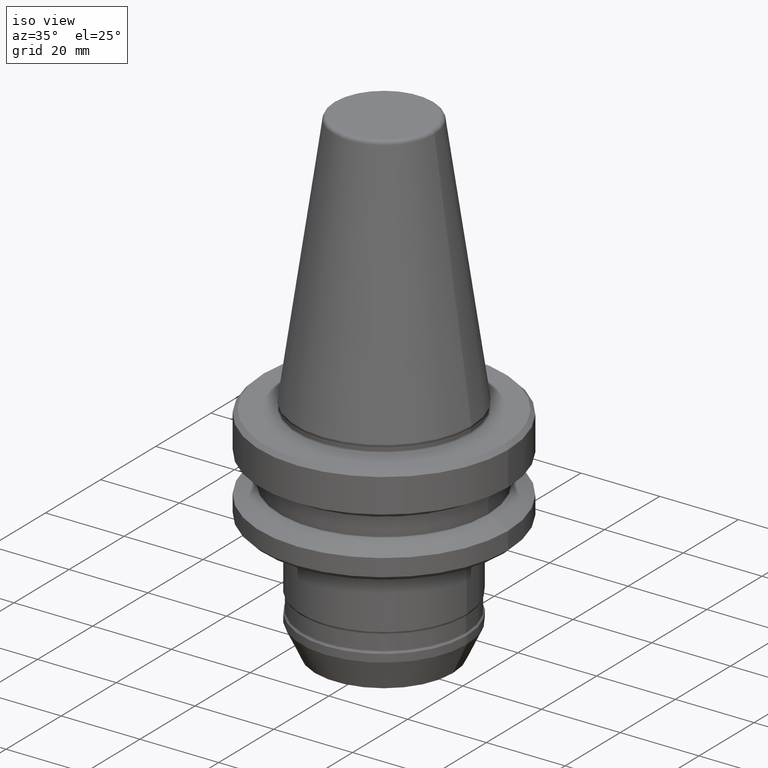
[diagram: clean part render]
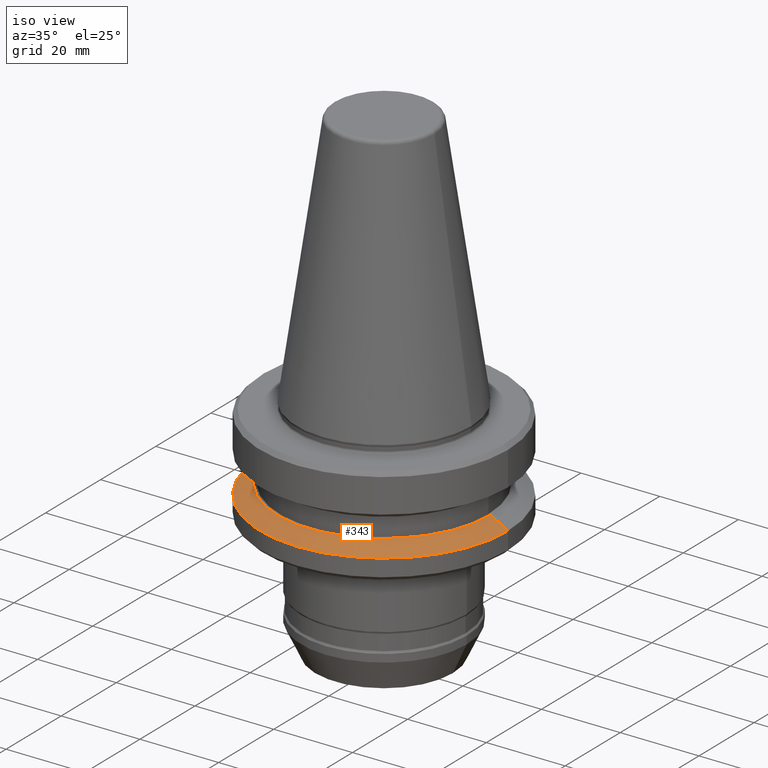
[diagram: same view with one face highlighted and labeled with its STEP entity id]
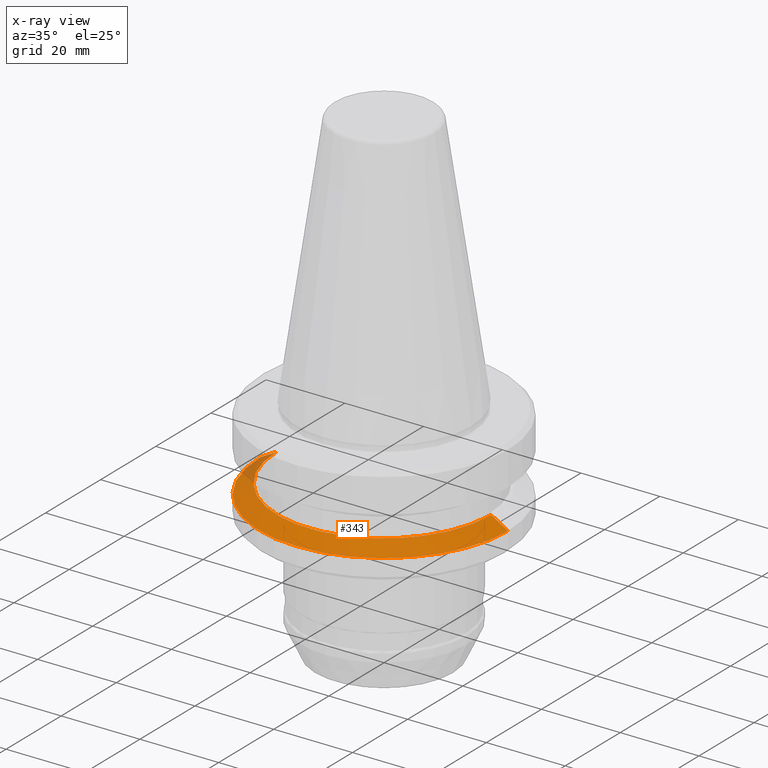
[diagram: x-ray of the same camera — body ghosted, the highlighted face saturated]
A machine part, iso view. The second image highlights one B-rep face of the part: STEP entity #343.
The next image is the same camera in x-ray: the body ghosted, the highlighted face saturated — about 4% of this face is hidden behind the body in this view.
In plain terms, the highlighted conical surface has half-angle 60 deg.
Its self-contained STEP definition (entity closure, byte-faithful):
#36 = DIRECTION ( 'NONE',  ( 0.8660254037844389300, 1.060575238724907300E-016, -0.4999999999999995000 ) ) ;
#72 = DIRECTION ( 'NONE',  ( -0.8660254037844389300, 0.0000000000000000000, -0.4999999999999995000 ) ) ;
#104 = VECTOR ( 'NONE', #36, 1000.000000000000000 ) ;
#118 = LINE ( 'NONE', #855, #104 ) ;
#124 = CIRCLE ( 'NONE', #806, 27.16962701894138000 ) ;
#207 = EDGE_CURVE ( 'NONE', #834, #754, #494, .T. ) ;
#332 = CONICAL_SURFACE ( 'NONE', #816, 31.50000000002021800, 1.047197551196598300 ) ;
#343 = ADVANCED_FACE ( 'NONE', ( #379 ), #332, .T. ) ;
#350 = CIRCLE ( 'NONE', #1110, 31.50000000002021800 ) ;
#370 = VERTEX_POINT ( 'NONE', #752 ) ;
#374 = EDGE_CURVE ( 'NONE', #754, #370, #350, .T. ) ;
#379 = FACE_OUTER_BOUND ( 'NONE', #958, .T. ) ;
#444 = DIRECTION ( 'NONE',  ( -1.000000000000000000, 0.0000000000000000000, 0.0000000000000000000 ) ) ;
#458 = DIRECTION ( 'NONE',  ( -0.0000000000000000000, -0.0000000000000000000, 1.000000000000000000 ) ) ;
#466 = DIRECTION ( 'NONE',  ( 1.000000000000000000, 0.0000000000000000000, 0.0000000000000000000 ) ) ;
#494 = LINE ( 'NONE', #711, #500 ) ;
#500 = VECTOR ( 'NONE', #72, 1000.000000000000000 ) ;
#573 = DIRECTION ( 'NONE',  ( -0.0000000000000000000, -0.0000000000000000000, 1.000000000000000000 ) ) ;
#663 = VERTEX_POINT ( 'NONE', #883 ) ;
#711 = CARTESIAN_POINT ( 'NONE',  ( -31.50000000002021800, 0.0000000000000000000, -21.60014200641272100 ) ) ;
#724 = ORIENTED_EDGE ( 'NONE', *, *, #1079, .F. ) ;
#752 = CARTESIAN_POINT ( 'NONE',  ( 31.50000000002021800, 0.0000000000000000000, -21.60014200641272100 ) ) ;
#754 = VERTEX_POINT ( 'NONE', #1002 ) ;
#762 = ORIENTED_EDGE ( 'NONE', *, *, #207, .T. ) ;
#806 = AXIS2_PLACEMENT_3D ( 'NONE', #1116, #573, #466 ) ;
#816 = AXIS2_PLACEMENT_3D ( 'NONE', #1097, #1185, #444 ) ;
#820 = ORIENTED_EDGE ( 'NONE', *, *, #374, .T. ) ;
#834 = VERTEX_POINT ( 'NONE', #1012 ) ;
#855 = CARTESIAN_POINT ( 'NONE',  ( 31.50000000002021800, 3.857637417316638100E-015, -21.60014200641272100 ) ) ;
#883 = CARTESIAN_POINT ( 'NONE',  ( 27.16962701894138000, 3.592478546797019400E-015, -19.10000000009537400 ) ) ;
#958 = EDGE_LOOP ( 'NONE', ( #724, #1210, #762, #820 ) ) ;
#984 = EDGE_CURVE ( 'NONE', #834, #663, #124, .T. ) ;
#1002 = CARTESIAN_POINT ( 'NONE',  ( -31.50000000002021800, 3.857637417316638100E-015, -21.60014200641272100 ) ) ;
#1012 = CARTESIAN_POINT ( 'NONE',  ( -27.16962701894138000, 0.0000000000000000000, -19.10000000009537400 ) ) ;
#1019 = CARTESIAN_POINT ( 'NONE',  ( 0.0000000000000000000, 0.0000000000000000000, -21.60014200641272100 ) ) ;
#1079 = EDGE_CURVE ( 'NONE', #663, #370, #118, .T. ) ;
#1097 = CARTESIAN_POINT ( 'NONE',  ( 0.0000000000000000000, 0.0000000000000000000, -21.60014200641272100 ) ) ;
#1107 = DIRECTION ( 'NONE',  ( 1.000000000000000000, 0.0000000000000000000, 0.0000000000000000000 ) ) ;
#1110 = AXIS2_PLACEMENT_3D ( 'NONE', #1019, #458, #1107 ) ;
#1116 = CARTESIAN_POINT ( 'NONE',  ( 0.0000000000000000000, 0.0000000000000000000, -19.10000000009537400 ) ) ;
#1185 = DIRECTION ( 'NONE',  ( 0.0000000000000000000, 0.0000000000000000000, -1.000000000000000000 ) ) ;
#1210 = ORIENTED_EDGE ( 'NONE', *, *, #984, .F. ) ;